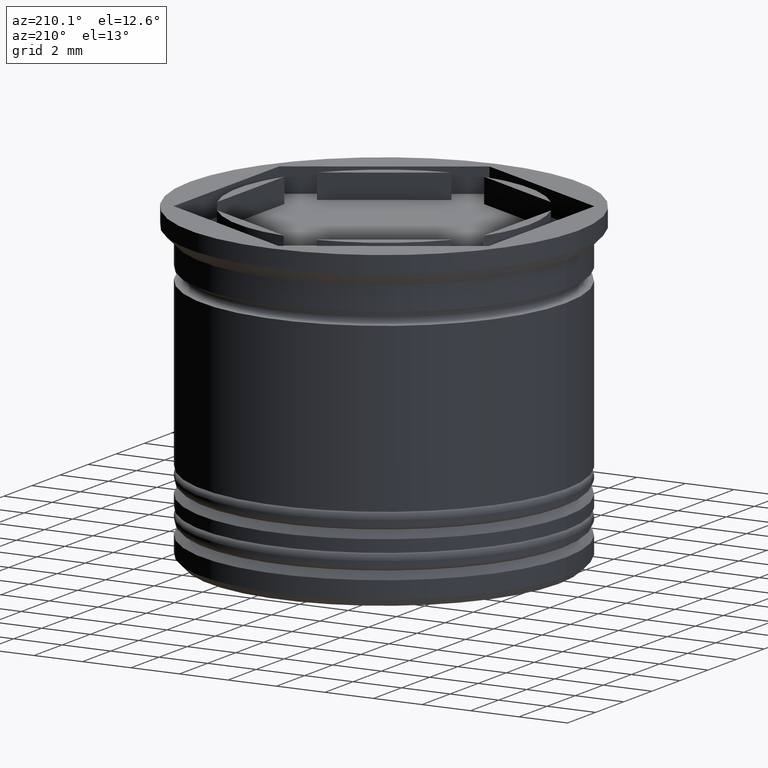
[diagram: clean part render]
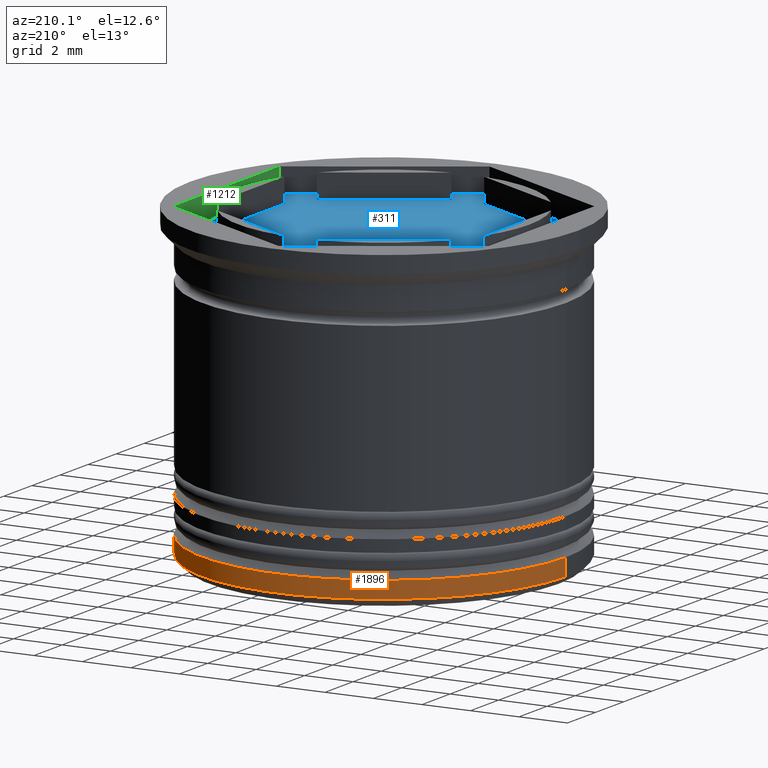
[diagram: same view with three faces highlighted in distinct colors, each labeled with its STEP entity id]
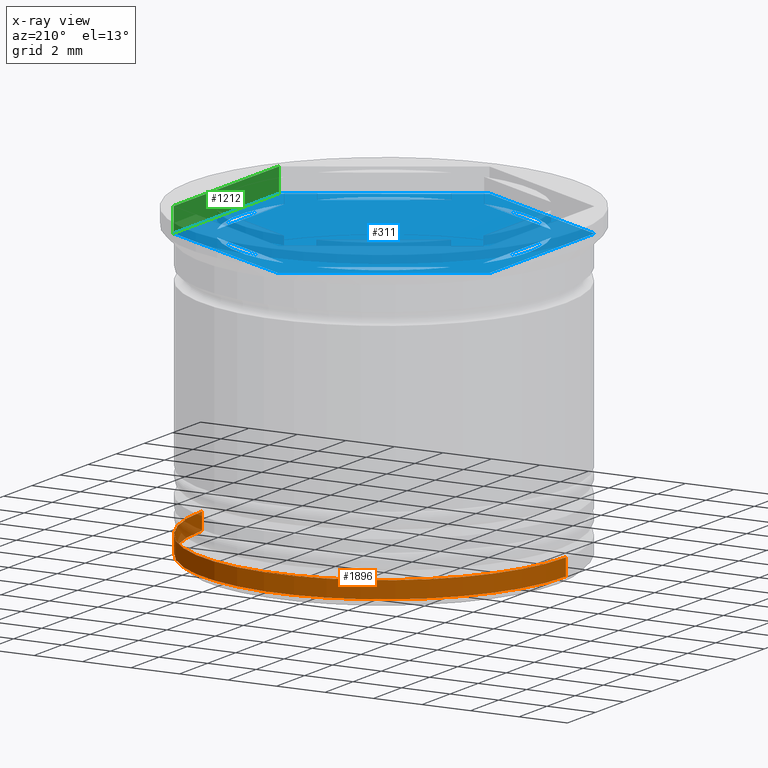
[diagram: x-ray of the same camera — body ghosted, the three highlighted faces saturated]
A machine part, auxiliary view with three faces highlighted in distinct colors.
The next image is the same camera in x-ray (body ghosted, the three faces saturated) — at least one of them is partly hidden behind the body in this view.
Their STEP definitions:

[orange] entity #1896 — the highlighted cylindrical surface (partial cylindrical patch) has radius 7.5 mm, axis along (-0, -0, 1).
#5 = DIRECTION ( 'NONE',  ( -1.000000000000000000, 0.000000000000000000, 0.000000000000000000 ) ) ;
#46 = CARTESIAN_POINT ( 'NONE',  ( 0.000000000000000000, 0.000000000000000000, -12.70000000000000284 ) ) ;
#59 = CARTESIAN_POINT ( 'NONE',  ( 7.500000000000000888, 0.000000000000000000, -12.00000000000000355 ) ) ;
#143 = EDGE_CURVE ( 'NONE', #1322, #1011, #1936, .T. ) ;
#176 = DIRECTION ( 'NONE',  ( -0.000000000000000000, -0.000000000000000000, 1.000000000000000000 ) ) ;
#204 = CARTESIAN_POINT ( 'NONE',  ( 7.500000000000000888, 0.000000000000000000, 0.000000000000000000 ) ) ;
#270 = CIRCLE ( 'NONE', #1501, 7.500000000000000888 ) ;
#424 = AXIS2_PLACEMENT_3D ( 'NONE', #46, #613, #5 ) ;
#449 = LINE ( 'NONE', #204, #719 ) ;
#508 = EDGE_CURVE ( 'NONE', #1322, #882, #449, .T. ) ;
#554 = VERTEX_POINT ( 'NONE', #1227 ) ;
#613 = DIRECTION ( 'NONE',  ( -0.000000000000000000, -0.000000000000000000, 1.000000000000000000 ) ) ;
#719 = VECTOR ( 'NONE', #1433, 1000.000000000000000 ) ;
#762 = CARTESIAN_POINT ( 'NONE',  ( -7.500000000000000888, 9.184850993605149917E-16, 0.000000000000000000 ) ) ;
#790 = CARTESIAN_POINT ( 'NONE',  ( 0.000000000000000000, 0.000000000000000000, 0.000000000000000000 ) ) ;
#799 = CYLINDRICAL_SURFACE ( 'NONE', #1910, 7.500000000000000888 ) ;
#805 = VECTOR ( 'NONE', #904, 1000.000000000000000 ) ;
#882 = VERTEX_POINT ( 'NONE', #59 ) ;
#904 = DIRECTION ( 'NONE',  ( -0.000000000000000000, -0.000000000000000000, 1.000000000000000000 ) ) ;
#990 = DIRECTION ( 'NONE',  ( -1.000000000000000000, 0.000000000000000000, 0.000000000000000000 ) ) ;
#1011 = VERTEX_POINT ( 'NONE', #1730 ) ;
#1129 = CARTESIAN_POINT ( 'NONE',  ( 0.000000000000000000, 0.000000000000000000, -12.00000000000000355 ) ) ;
#1227 = CARTESIAN_POINT ( 'NONE',  ( -7.500000000000000888, 9.184850993605149917E-16, -12.00000000000000355 ) ) ;
#1229 = ORIENTED_EDGE ( 'NONE', *, *, #143, .T. ) ;
#1251 = EDGE_CURVE ( 'NONE', #554, #882, #270, .T. ) ;
#1301 = DIRECTION ( 'NONE',  ( 0.000000000000000000, 0.000000000000000000, -1.000000000000000000 ) ) ;
#1322 = VERTEX_POINT ( 'NONE', #1955 ) ;
#1331 = EDGE_LOOP ( 'NONE', ( #1229, #1883, #1585, #1689 ) ) ;
#1405 = EDGE_CURVE ( 'NONE', #1011, #554, #1671, .T. ) ;
#1433 = DIRECTION ( 'NONE',  ( -0.000000000000000000, -0.000000000000000000, 1.000000000000000000 ) ) ;
#1501 = AXIS2_PLACEMENT_3D ( 'NONE', #1129, #1301, #990 ) ;
#1526 = FACE_OUTER_BOUND ( 'NONE', #1331, .T. ) ;
#1552 = DIRECTION ( 'NONE',  ( 1.000000000000000000, 0.000000000000000000, 0.000000000000000000 ) ) ;
#1585 = ORIENTED_EDGE ( 'NONE', *, *, #1251, .T. ) ;
#1671 = LINE ( 'NONE', #762, #805 ) ;
#1689 = ORIENTED_EDGE ( 'NONE', *, *, #508, .F. ) ;
#1730 = CARTESIAN_POINT ( 'NONE',  ( -7.500000000000000888, 9.184850993605149917E-16, -12.70000000000000284 ) ) ;
#1883 = ORIENTED_EDGE ( 'NONE', *, *, #1405, .T. ) ;
#1896 = ADVANCED_FACE ( 'NONE', ( #1526 ), #799, .T. ) ;
#1910 = AXIS2_PLACEMENT_3D ( 'NONE', #790, #176, #1552 ) ;
#1936 = CIRCLE ( 'NONE', #424, 7.500000000000000888 ) ;
#1955 = CARTESIAN_POINT ( 'NONE',  ( 7.500000000000000888, 0.000000000000000000, -12.70000000000000284 ) ) ;

[blue] entity #311 — the highlighted planar face has unit normal (0, 0, 1).
#13 = CARTESIAN_POINT ( 'NONE',  ( -0.6733440342704841708, -5.962097601642594391, -1.000000000000000888 ) ) ;
#15 = EDGE_CURVE ( 'NONE', #1267, #1598, #331, .T. ) ;
#17 = DIRECTION ( 'NONE',  ( 0.000000000000000000, 0.000000000000000000, 1.000000000000000000 ) ) ;
#33 = CARTESIAN_POINT ( 'NONE',  ( 0.6733440342704855031, 5.962097601642593503, -1.000000000000000888 ) ) ;
#40 = CARTESIAN_POINT ( 'NONE',  ( -8.673617379884035472E-16, 6.350852961085887038, -1.000000000000000888 ) ) ;
#44 = VERTEX_POINT ( 'NONE', #1931 ) ;
#63 = DIRECTION ( 'NONE',  ( 1.000000000000000000, 0.000000000000000000, 0.000000000000000000 ) ) ;
#76 = DIRECTION ( 'NONE',  ( -0.8660254037844387076, -0.4999999999999998890, 0.000000000000000000 ) ) ;
#82 = CARTESIAN_POINT ( 'NONE',  ( 6.500000000000001776, -3.752776749732567918, -1.000000000000000000 ) ) ;
#106 = FACE_BOUND ( 'NONE', #1219, .T. ) ;
#116 = EDGE_CURVE ( 'NONE', #827, #561, #1248, .T. ) ;
#118 = CARTESIAN_POINT ( 'NONE',  ( 0.000000000000000000, 7.505553499465135836, -1.000000000000000000 ) ) ;
#126 = EDGE_CURVE ( 'NONE', #468, #430, #1772, .T. ) ;
#134 = CARTESIAN_POINT ( 'NONE',  ( -3.394223061414856671E-17, -7.505553499465136724, -1.000000000000000000 ) ) ;
#136 = DIRECTION ( 'NONE',  ( 0.8660254037844387076, -0.4999999999999998335, 0.000000000000000000 ) ) ;
#138 = VERTEX_POINT ( 'NONE', #1990 ) ;
#160 = EDGE_LOOP ( 'NONE', ( #889, #982 ) ) ;
#163 = ORIENTED_EDGE ( 'NONE', *, *, #1341, .T. ) ;
#195 = ORIENTED_EDGE ( 'NONE', *, *, #1323, .T. ) ;
#203 = ORIENTED_EDGE ( 'NONE', *, *, #1006, .F. ) ;
#209 = DIRECTION ( 'NONE',  ( 0.000000000000000000, 0.000000000000000000, 1.000000000000000000 ) ) ;
#220 = CIRCLE ( 'NONE', #1080, 6.000000000000000888 ) ;
#226 = DIRECTION ( 'NONE',  ( 0.000000000000000000, 0.000000000000000000, 1.000000000000000000 ) ) ;
#259 = LINE ( 'NONE', #1507, #682 ) ;
#276 = CARTESIAN_POINT ( 'NONE',  ( 4.826655965729518272, -3.564181839986237055, -1.000000000000000888 ) ) ;
#277 = FACE_BOUND ( 'NONE', #160, .T. ) ;
#282 = ORIENTED_EDGE ( 'NONE', *, *, #1121, .T. ) ;
#283 = LINE ( 'NONE', #134, #1049 ) ;
#305 = VECTOR ( 'NONE', #1806, 1000.000000000000114 ) ;
#311 = ADVANCED_FACE ( 'NONE', ( #1499, #106, #1816, #1041, #1660, #277, #899 ), #755, .T. ) ;
#320 = CARTESIAN_POINT ( 'NONE',  ( -6.500000000000001776, -3.752776749732568806, -1.000000000000000000 ) ) ;
#331 = LINE ( 'NONE', #951, #1533 ) ;
#364 = ORIENTED_EDGE ( 'NONE', *, *, #1790, .F. ) ;
#384 = DIRECTION ( 'NONE',  ( 1.000000000000000000, 0.000000000000000000, 0.000000000000000000 ) ) ;
#388 = DIRECTION ( 'NONE',  ( 0.000000000000000000, 0.000000000000000000, 1.000000000000000000 ) ) ;
#400 = DIRECTION ( 'NONE',  ( 0.000000000000000000, 1.000000000000000000, 0.000000000000000000 ) ) ;
#417 = VERTEX_POINT ( 'NONE', #33 ) ;
#430 = VERTEX_POINT ( 'NONE', #1483 ) ;
#442 = ORIENTED_EDGE ( 'NONE', *, *, #1253, .F. ) ;
#456 = VERTEX_POINT ( 'NONE', #1813 ) ;
#458 = DIRECTION ( 'NONE',  ( -1.365740544306507381E-16, -1.000000000000000000, 0.000000000000000000 ) ) ;
#463 = CIRCLE ( 'NONE', #1373, 6.000000000000000888 ) ;
#468 = VERTEX_POINT ( 'NONE', #1038 ) ;
#471 = DIRECTION ( 'NONE',  ( 1.000000000000000000, 0.000000000000000000, 0.000000000000000000 ) ) ;
#484 = LINE ( 'NONE', #1096, #1343 ) ;
#488 = CARTESIAN_POINT ( 'NONE',  ( 5.500000000000000888, -2.397915761656362221, -1.000000000000000888 ) ) ;
#511 = DIRECTION ( 'NONE',  ( 1.000000000000000000, 0.000000000000000000, 0.000000000000000000 ) ) ;
#556 = EDGE_CURVE ( 'NONE', #44, #1944, #1878, .T. ) ;
#561 = VERTEX_POINT ( 'NONE', #1738 ) ;
#571 = CIRCLE ( 'NONE', #956, 6.000000000000000888 ) ;
#580 = DIRECTION ( 'NONE',  ( 1.000000000000000000, 0.000000000000000000, 0.000000000000000000 ) ) ;
#583 = ORIENTED_EDGE ( 'NONE', *, *, #1157, .F. ) ;
#600 = VECTOR ( 'NONE', #791, 999.9999999999998863 ) ;
#682 = VECTOR ( 'NONE', #400, 1000.000000000000000 ) ;
#691 = CARTESIAN_POINT ( 'NONE',  ( 4.826655965729516495, 3.564181839986238831, -1.000000000000000888 ) ) ;
#721 = AXIS2_PLACEMENT_3D ( 'NONE', #1035, #1052, #580 ) ;
#727 = CARTESIAN_POINT ( 'NONE',  ( 0.000000000000000000, 0.000000000000000000, -1.000000000000000000 ) ) ;
#737 = VERTEX_POINT ( 'NONE', #691 ) ;
#755 = PLANE ( 'NONE',  #766 ) ;
#763 = DIRECTION ( 'NONE',  ( 0.8660254037844385966, -0.4999999999999999445, 0.000000000000000000 ) ) ;
#766 = AXIS2_PLACEMENT_3D ( 'NONE', #727, #1172, #1013 ) ;
#768 = EDGE_CURVE ( 'NONE', #430, #1299, #259, .T. ) ;
#791 = DIRECTION ( 'NONE',  ( -0.8660254037844387076, 0.5000000000000001110, 0.000000000000000000 ) ) ;
#792 = ORIENTED_EDGE ( 'NONE', *, *, #116, .T. ) ;
#802 = VECTOR ( 'NONE', #76, 1000.000000000000114 ) ;
#813 = EDGE_LOOP ( 'NONE', ( #583, #1742 ) ) ;
#816 = ORIENTED_EDGE ( 'NONE', *, *, #1596, .F. ) ;
#825 = CARTESIAN_POINT ( 'NONE',  ( 0.000000000000000000, 0.000000000000000000, -1.000000000000000000 ) ) ;
#827 = VERTEX_POINT ( 'NONE', #942 ) ;
#828 = EDGE_CURVE ( 'NONE', #1418, #997, #920, .T. ) ;
#835 = VECTOR ( 'NONE', #1490, 1000.000000000000114 ) ;
#842 = CARTESIAN_POINT ( 'NONE',  ( 0.000000000000000000, 0.000000000000000000, -1.000000000000000000 ) ) ;
#845 = DIRECTION ( 'NONE',  ( 0.000000000000000000, 0.000000000000000000, 1.000000000000000000 ) ) ;
#854 = DIRECTION ( 'NONE',  ( 0.000000000000000000, 0.000000000000000000, 1.000000000000000000 ) ) ;
#869 = LINE ( 'NONE', #1837, #305 ) ;
#873 = EDGE_CURVE ( 'NONE', #456, #1407, #1562, .T. ) ;
#876 = LINE ( 'NONE', #118, #835 ) ;
#889 = ORIENTED_EDGE ( 'NONE', *, *, #1607, .F. ) ;
#891 = AXIS2_PLACEMENT_3D ( 'NONE', #1840, #17, #471 ) ;
#899 = FACE_OUTER_BOUND ( 'NONE', #1959, .T. ) ;
#920 = LINE ( 'NONE', #1724, #600 ) ;
#942 = CARTESIAN_POINT ( 'NONE',  ( -6.500000000000001776, -3.752776749732568806, -1.000000000000000000 ) ) ;
#948 = DIRECTION ( 'NONE',  ( 0.000000000000000000, -1.000000000000000000, 0.000000000000000000 ) ) ;
#951 = CARTESIAN_POINT ( 'NONE',  ( 6.500000000000001776, -3.752776749732567918, -1.000000000000000000 ) ) ;
#955 = DIRECTION ( 'NONE',  ( 0.8660254037844385966, 0.4999999999999999445, -0.000000000000000000 ) ) ;
#956 = AXIS2_PLACEMENT_3D ( 'NONE', #1848, #209, #511 ) ;
#978 = VERTEX_POINT ( 'NONE', #1891 ) ;
#982 = ORIENTED_EDGE ( 'NONE', *, *, #873, .F. ) ;
#991 = VECTOR ( 'NONE', #763, 1000.000000000000114 ) ;
#997 = VERTEX_POINT ( 'NONE', #1274 ) ;
#1006 = EDGE_CURVE ( 'NONE', #737, #417, #571, .T. ) ;
#1013 = DIRECTION ( 'NONE',  ( 1.000000000000000000, 0.000000000000000000, -0.000000000000000000 ) ) ;
#1030 = DIRECTION ( 'NONE',  ( 0.8660254037844385966, 0.5000000000000001110, 0.000000000000000000 ) ) ;
#1035 = CARTESIAN_POINT ( 'NONE',  ( 0.000000000000000000, 0.000000000000000000, -1.000000000000000000 ) ) ;
#1038 = CARTESIAN_POINT ( 'NONE',  ( -6.000000000000000888, 0.000000000000000000, -1.000000000000000000 ) ) ;
#1041 = FACE_BOUND ( 'NONE', #813, .T. ) ;
#1049 = VECTOR ( 'NONE', #1030, 1000.000000000000114 ) ;
#1052 = DIRECTION ( 'NONE',  ( 0.000000000000000000, 0.000000000000000000, 1.000000000000000000 ) ) ;
#1059 = ORIENTED_EDGE ( 'NONE', *, *, #556, .F. ) ;
#1080 = AXIS2_PLACEMENT_3D ( 'NONE', #825, #854, #1311 ) ;
#1096 = CARTESIAN_POINT ( 'NONE',  ( -6.500000000000001776, 3.752776749732565698, -1.000000000000000000 ) ) ;
#1121 = EDGE_CURVE ( 'NONE', #978, #827, #484, .T. ) ;
#1127 = DIRECTION ( 'NONE',  ( 1.000000000000000000, 0.000000000000000000, 0.000000000000000000 ) ) ;
#1142 = EDGE_LOOP ( 'NONE', ( #364, #1633, #1919 ) ) ;
#1150 = CIRCLE ( 'NONE', #1238, 6.000000000000000888 ) ;
#1157 = EDGE_CURVE ( 'NONE', #997, #1418, #463, .T. ) ;
#1170 = EDGE_LOOP ( 'NONE', ( #816, #442 ) ) ;
#1172 = DIRECTION ( 'NONE',  ( 0.000000000000000000, 0.000000000000000000, 1.000000000000000000 ) ) ;
#1210 = VECTOR ( 'NONE', #136, 1000.000000000000114 ) ;
#1219 = EDGE_LOOP ( 'NONE', ( #1805, #1059 ) ) ;
#1234 = EDGE_CURVE ( 'NONE', #1944, #44, #1150, .T. ) ;
#1238 = AXIS2_PLACEMENT_3D ( 'NONE', #1439, #226, #63 ) ;
#1246 = ORIENTED_EDGE ( 'NONE', *, *, #15, .T. ) ;
#1248 = LINE ( 'NONE', #320, #991 ) ;
#1253 = EDGE_CURVE ( 'NONE', #1309, #138, #1756, .T. ) ;
#1267 = VERTEX_POINT ( 'NONE', #82 ) ;
#1274 = CARTESIAN_POINT ( 'NONE',  ( -4.826655965729519160, -3.564181839986236611, -1.000000000000000888 ) ) ;
#1286 = CARTESIAN_POINT ( 'NONE',  ( 0.000000000000000000, 0.000000000000000000, -1.000000000000000000 ) ) ;
#1299 = VERTEX_POINT ( 'NONE', #1815 ) ;
#1309 = VERTEX_POINT ( 'NONE', #276 ) ;
#1311 = DIRECTION ( 'NONE',  ( 1.000000000000000000, 0.000000000000000000, 0.000000000000000000 ) ) ;
#1323 = EDGE_CURVE ( 'NONE', #561, #1267, #283, .T. ) ;
#1327 = CARTESIAN_POINT ( 'NONE',  ( 5.500000000000001776, 3.175426480542944851, -1.000000000000000888 ) ) ;
#1341 = EDGE_CURVE ( 'NONE', #1590, #978, #876, .T. ) ;
#1343 = VECTOR ( 'NONE', #948, 1000.000000000000000 ) ;
#1373 = AXIS2_PLACEMENT_3D ( 'NONE', #1286, #845, #384 ) ;
#1390 = EDGE_CURVE ( 'NONE', #1598, #1590, #869, .T. ) ;
#1407 = VERTEX_POINT ( 'NONE', #1485 ) ;
#1418 = VERTEX_POINT ( 'NONE', #13 ) ;
#1439 = CARTESIAN_POINT ( 'NONE',  ( 0.000000000000000000, 0.000000000000000000, -1.000000000000000000 ) ) ;
#1455 = CARTESIAN_POINT ( 'NONE',  ( -4.336808689942017736E-16, -6.350852961085885262, -1.000000000000000888 ) ) ;
#1471 = VECTOR ( 'NONE', #458, 1000.000000000000000 ) ;
#1483 = CARTESIAN_POINT ( 'NONE',  ( -5.500000000000001776, -2.397915761656359113, -1.000000000000000888 ) ) ;
#1485 = CARTESIAN_POINT ( 'NONE',  ( -0.6733440342704863912, 5.962097601642592615, -1.000000000000000888 ) ) ;
#1490 = DIRECTION ( 'NONE',  ( -0.8660254037844384856, -0.5000000000000002220, 0.000000000000000000 ) ) ;
#1499 = FACE_BOUND ( 'NONE', #1563, .T. ) ;
#1507 = CARTESIAN_POINT ( 'NONE',  ( -5.500000000000001776, 3.175426480542944851, -1.000000000000000888 ) ) ;
#1533 = VECTOR ( 'NONE', #1571, 1000.000000000000000 ) ;
#1562 = LINE ( 'NONE', #40, #1793 ) ;
#1563 = EDGE_LOOP ( 'NONE', ( #203, #1889 ) ) ;
#1571 = DIRECTION ( 'NONE',  ( 1.155626614413199331E-16, 1.000000000000000000, 0.000000000000000000 ) ) ;
#1590 = VERTEX_POINT ( 'NONE', #1610 ) ;
#1596 = EDGE_CURVE ( 'NONE', #138, #1309, #1830, .T. ) ;
#1598 = VERTEX_POINT ( 'NONE', #1918 ) ;
#1603 = ORIENTED_EDGE ( 'NONE', *, *, #1390, .T. ) ;
#1607 = EDGE_CURVE ( 'NONE', #1407, #456, #220, .T. ) ;
#1610 = CARTESIAN_POINT ( 'NONE',  ( 0.000000000000000000, 7.505553499465135836, -1.000000000000000000 ) ) ;
#1633 = ORIENTED_EDGE ( 'NONE', *, *, #768, .F. ) ;
#1653 = LINE ( 'NONE', #1327, #1210 ) ;
#1660 = FACE_BOUND ( 'NONE', #1142, .T. ) ;
#1701 = CARTESIAN_POINT ( 'NONE',  ( 5.500000000000000888, -3.175426480542943963, -1.000000000000000888 ) ) ;
#1724 = CARTESIAN_POINT ( 'NONE',  ( -5.500000000000001776, -3.175426480542942631, -1.000000000000000888 ) ) ;
#1738 = CARTESIAN_POINT ( 'NONE',  ( -3.394223061414856671E-17, -7.505553499465136724, -1.000000000000000000 ) ) ;
#1742 = ORIENTED_EDGE ( 'NONE', *, *, #828, .F. ) ;
#1749 = EDGE_CURVE ( 'NONE', #417, #737, #1653, .T. ) ;
#1756 = LINE ( 'NONE', #1455, #802 ) ;
#1772 = CIRCLE ( 'NONE', #891, 6.000000000000000888 ) ;
#1790 = EDGE_CURVE ( 'NONE', #1299, #468, #1801, .T. ) ;
#1793 = VECTOR ( 'NONE', #955, 1000.000000000000114 ) ;
#1801 = CIRCLE ( 'NONE', #721, 6.000000000000000888 ) ;
#1805 = ORIENTED_EDGE ( 'NONE', *, *, #1234, .F. ) ;
#1806 = DIRECTION ( 'NONE',  ( -0.8660254037844387076, 0.4999999999999998335, 0.000000000000000000 ) ) ;
#1813 = CARTESIAN_POINT ( 'NONE',  ( -4.826655965729516495, 3.564181839986237499, -1.000000000000000888 ) ) ;
#1815 = CARTESIAN_POINT ( 'NONE',  ( -5.500000000000001776, 2.397915761656359113, -1.000000000000000888 ) ) ;
#1816 = FACE_BOUND ( 'NONE', #1170, .T. ) ;
#1830 = CIRCLE ( 'NONE', #1861, 6.000000000000000888 ) ;
#1837 = CARTESIAN_POINT ( 'NONE',  ( 6.500000000000002665, 3.752776749732568806, -1.000000000000000000 ) ) ;
#1840 = CARTESIAN_POINT ( 'NONE',  ( 0.000000000000000000, 0.000000000000000000, -1.000000000000000000 ) ) ;
#1848 = CARTESIAN_POINT ( 'NONE',  ( 0.000000000000000000, 0.000000000000000000, -1.000000000000000000 ) ) ;
#1861 = AXIS2_PLACEMENT_3D ( 'NONE', #842, #388, #1127 ) ;
#1878 = LINE ( 'NONE', #1701, #1471 ) ;
#1889 = ORIENTED_EDGE ( 'NONE', *, *, #1749, .F. ) ;
#1891 = CARTESIAN_POINT ( 'NONE',  ( -6.500000000000001776, 3.752776749732565698, -1.000000000000000000 ) ) ;
#1918 = CARTESIAN_POINT ( 'NONE',  ( 6.500000000000002665, 3.752776749732568806, -1.000000000000000000 ) ) ;
#1919 = ORIENTED_EDGE ( 'NONE', *, *, #126, .F. ) ;
#1931 = CARTESIAN_POINT ( 'NONE',  ( 5.500000000000000888, 2.397915761656360445, -1.000000000000000888 ) ) ;
#1944 = VERTEX_POINT ( 'NONE', #488 ) ;
#1959 = EDGE_LOOP ( 'NONE', ( #1603, #163, #282, #792, #195, #1246 ) ) ;
#1990 = CARTESIAN_POINT ( 'NONE',  ( 0.6733440342704833936, -5.962097601642594391, -1.000000000000000888 ) ) ;

[green] entity #1212 — the highlighted planar face has unit normal (1, -0, 0).
#15 = EDGE_CURVE ( 'NONE', #1267, #1598, #331, .T. ) ;
#20 = CARTESIAN_POINT ( 'NONE',  ( 6.500000000000002665, 3.752776749732568806, 0.000000000000000000 ) ) ;
#82 = CARTESIAN_POINT ( 'NONE',  ( 6.500000000000001776, -3.752776749732567918, -1.000000000000000000 ) ) ;
#120 = VECTOR ( 'NONE', #1545, 1000.000000000000000 ) ;
#159 = DIRECTION ( 'NONE',  ( -0.000000000000000000, -0.000000000000000000, 1.000000000000000000 ) ) ;
#189 = EDGE_CURVE ( 'NONE', #1598, #516, #705, .T. ) ;
#216 = CARTESIAN_POINT ( 'NONE',  ( 6.500000000000002665, 3.752776749732568806, -1.000000000000000000 ) ) ;
#303 = LINE ( 'NONE', #783, #120 ) ;
#331 = LINE ( 'NONE', #951, #1533 ) ;
#362 = PLANE ( 'NONE',  #1184 ) ;
#516 = VERTEX_POINT ( 'NONE', #20 ) ;
#696 = EDGE_LOOP ( 'NONE', ( #1658, #789, #1580, #1386 ) ) ;
#705 = LINE ( 'NONE', #216, #806 ) ;
#783 = CARTESIAN_POINT ( 'NONE',  ( 6.500000000000001776, -3.752776749732567918, 0.000000000000000000 ) ) ;
#789 = ORIENTED_EDGE ( 'NONE', *, *, #189, .F. ) ;
#806 = VECTOR ( 'NONE', #1272, 1000.000000000000000 ) ;
#924 = CARTESIAN_POINT ( 'NONE',  ( 6.500000000000001776, -3.752776749732567918, -1.000000000000000000 ) ) ;
#944 = EDGE_CURVE ( 'NONE', #1482, #516, #303, .T. ) ;
#951 = CARTESIAN_POINT ( 'NONE',  ( 6.500000000000001776, -3.752776749732567918, -1.000000000000000000 ) ) ;
#1084 = LINE ( 'NONE', #924, #1739 ) ;
#1139 = DIRECTION ( 'NONE',  ( 1.000000000000000000, -1.155626614413199331E-16, 0.000000000000000000 ) ) ;
#1184 = AXIS2_PLACEMENT_3D ( 'NONE', #1477, #1139, #1614 ) ;
#1212 = ADVANCED_FACE ( 'NONE', ( #1316 ), #362, .F. ) ;
#1259 = CARTESIAN_POINT ( 'NONE',  ( 6.500000000000001776, -3.752776749732567918, 0.000000000000000000 ) ) ;
#1267 = VERTEX_POINT ( 'NONE', #82 ) ;
#1272 = DIRECTION ( 'NONE',  ( -0.000000000000000000, -0.000000000000000000, 1.000000000000000000 ) ) ;
#1316 = FACE_OUTER_BOUND ( 'NONE', #696, .T. ) ;
#1386 = ORIENTED_EDGE ( 'NONE', *, *, #1434, .T. ) ;
#1434 = EDGE_CURVE ( 'NONE', #1267, #1482, #1084, .T. ) ;
#1477 = CARTESIAN_POINT ( 'NONE',  ( 6.500000000000001776, -3.752776749732567918, -1.000000000000000000 ) ) ;
#1482 = VERTEX_POINT ( 'NONE', #1259 ) ;
#1533 = VECTOR ( 'NONE', #1571, 1000.000000000000000 ) ;
#1545 = DIRECTION ( 'NONE',  ( 1.155626614413199331E-16, 1.000000000000000000, 0.000000000000000000 ) ) ;
#1571 = DIRECTION ( 'NONE',  ( 1.155626614413199331E-16, 1.000000000000000000, 0.000000000000000000 ) ) ;
#1580 = ORIENTED_EDGE ( 'NONE', *, *, #15, .F. ) ;
#1598 = VERTEX_POINT ( 'NONE', #1918 ) ;
#1614 = DIRECTION ( 'NONE',  ( 1.155626614413199331E-16, 1.000000000000000000, 0.000000000000000000 ) ) ;
#1658 = ORIENTED_EDGE ( 'NONE', *, *, #944, .T. ) ;
#1739 = VECTOR ( 'NONE', #159, 1000.000000000000000 ) ;
#1918 = CARTESIAN_POINT ( 'NONE',  ( 6.500000000000002665, 3.752776749732568806, -1.000000000000000000 ) ) ;